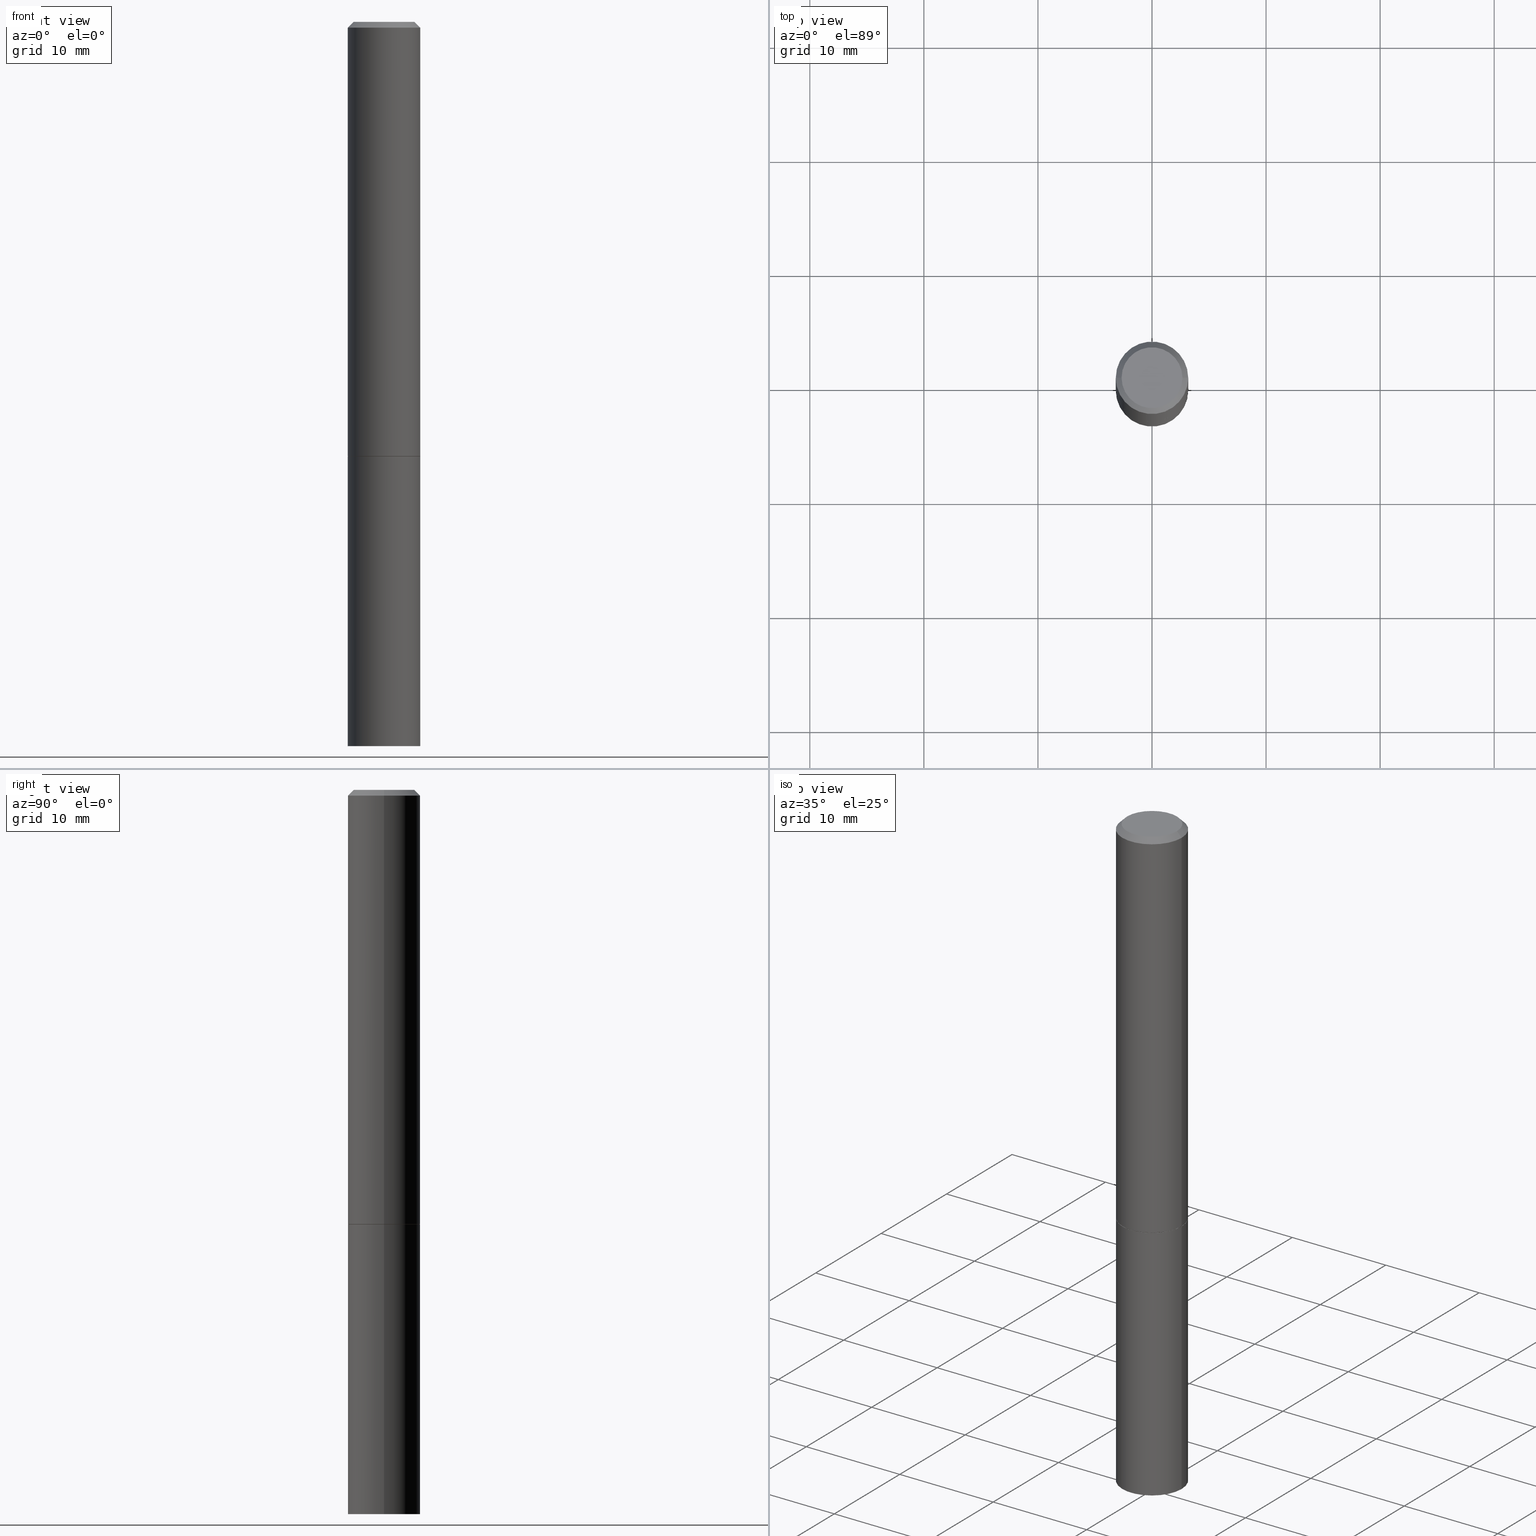
[diagram: canonical four-view strip — front | top / right | iso, engineering-drawing reading convention]
A machine part, canonical four-view strip (front | top / right | iso — engineering-drawing reading convention). The complete STEP part file that produces these views, byte-faithful:
ISO-10303-21;
HEADER;
FILE_DESCRIPTION (( 'STEP AP203' ),
    '1' );
FILE_NAME ('73079.STEP',
    '2024-02-29T07:47:25',
    ( '' ),
    ( '' ),
    'SwSTEP 2.0',
    'SolidWorks 2023',
    '' );
FILE_SCHEMA (( 'CONFIG_CONTROL_DESIGN' ));
ENDSEC;

DATA;
#1 = VECTOR ( 'NONE', #127, 39.37007874015748143 ) ;
#2 = EDGE_CURVE ( 'NONE', #347, #315, #365, .T. ) ;
#3 = AXIS2_PLACEMENT_3D ( 'NONE', #12, #95, #208 ) ;
#4 = SECURITY_CLASSIFICATION ( '', '', #124 ) ;
#5 = CARTESIAN_POINT ( 'NONE',  ( 0.1049999999999998018, -8.238720831321562839E-16, -8.537024980195379109E-18 ) ) ;
#6 = EDGE_CURVE ( 'NONE', #278, #240, #47, .T. ) ;
#7 = DIRECTION ( 'NONE',  ( 1.000000000000000000, -6.982962677686262766E-15, 0.000000000000000000 ) ) ;
#8 = DIRECTION ( 'NONE',  ( 1.000000000000000000, -6.982962677686270655E-15, 0.000000000000000000 ) ) ;
#9 = APPROVAL ( #15, 'UNSPECIFIED' ) ;
#10 = CARTESIAN_POINT ( 'NONE',  ( 4.890937612370282792E-31, -6.982962677686303935E-17, -0.02000000000000003858 ) ) ;
#11 = CIRCLE ( 'NONE', #34, 0.1250000000000000278 ) ;
#12 = CARTESIAN_POINT ( 'NONE',  ( 7.332110811570565452E-16, 0.1049999999999998018, -3.708740530686300305E-16 ) ) ;
#13 = PERSON_AND_ORGANIZATION ( #245, #106 ) ;
#14 = CARTESIAN_POINT ( 'NONE',  ( -0.1249999999999997918, 8.030407079339188573E-16, -0.02000000000000003858 ) ) ;
#15 = APPROVAL_STATUS ( 'not_yet_approved' ) ;
#16 = MANIFOLD_SOLID_BREP ( 'Body-Move/Copy2[1]', #157 ) ;
#17 = CARTESIAN_POINT ( 'NONE',  ( -0.1250000000000000278, -1.763601657151242227E-15, -1.499000000000000110 ) ) ;
#18 = DIRECTION ( 'NONE',  ( 1.000000000000000000, 0.000000000000000000, 0.000000000000000000 ) ) ;
#19 = CARTESIAN_POINT ( 'NONE',  ( -0.1250000000000000000, -6.094784257986165933E-15, -2.500000000000000000 ) ) ;
#20 = ORIENTED_EDGE ( 'NONE', *, *, #306, .T. ) ;
#21 = PERSON_AND_ORGANIZATION ( #245, #106 ) ;
#22 = AXIS2_PLACEMENT_3D ( 'NONE', #27, #254, #162 ) ;
#23 = ADVANCED_FACE ( 'NONE', ( #63 ), #33, .T. ) ;
#24 = DIRECTION ( 'NONE',  ( 1.000000000000000000, -6.982962677686266711E-15, 4.876176775795935793E-29 ) ) ;
#25 = PRODUCT_DEFINITION_FORMATION_WITH_SPECIFIED_SOURCE ( 'ANY', '', #138, .NOT_KNOWN. ) ;
#26 = APPLICATION_CONTEXT ( 'configuration controlled 3d designs of mechanical parts and assemblies' ) ;
#27 = CARTESIAN_POINT ( 'NONE',  ( 8.728703347108443769E-16, 0.1249999999999912709, -2.500000000000000444 ) ) ;
#28 = CARTESIAN_POINT ( 'NONE',  ( 0.1249999999999999029, -8.728703347107826486E-16, 6.095220969744914837E-30 ) ) ;
#29 = SHAPE_DEFINITION_REPRESENTATION ( #201, #161 ) ;
#30 = CONICAL_SURFACE ( 'NONE', #54, 0.1249999999999997918, 0.7853981633974473908 ) ;
#31 = CARTESIAN_POINT ( 'NONE',  ( 2.087702828670439639E-46, -2.980686340760894400E-32, -8.537024980200822558E-18 ) ) ;
#32 = CARTESIAN_POINT ( 'NONE',  ( -0.1250000000000000000, -6.094784257986165933E-15, -1.500000000000000222 ) ) ;
#33 = CYLINDRICAL_SURFACE ( 'NONE', #72, 0.1250000000000000000 ) ;
#34 = AXIS2_PLACEMENT_3D ( 'NONE', #222, #342, #53 ) ;
#35 = APPROVAL_PERSON_ORGANIZATION ( #243, #41, #98 ) ;
#36 = DIRECTION ( 'NONE',  ( 1.000000000000000000, -6.982962677686270655E-15, 0.000000000000000000 ) ) ;
#37 = DIRECTION ( 'NONE',  ( 1.000000000000000000, -6.982962677686270655E-15, 0.000000000000000000 ) ) ;
#38 = DESIGN_CONTEXT ( 'detailed design', #42, 'design' ) ;
#39 = CARTESIAN_POINT ( 'NONE',  ( 0.1239999999999999991, -6.103109380297816290E-15, -1.500000000000000222 ) ) ;
#40 = PERSON_AND_ORGANIZATION ( #245, #106 ) ;
#41 = APPROVAL ( #355, 'UNSPECIFIED' ) ;
#42 = APPLICATION_CONTEXT ( 'configuration controlled 3d designs of mechanical parts and assemblies' ) ;
#43 = EDGE_LOOP ( 'NONE', ( #225, #65, #20, #160 ) ) ;
#44 = VERTEX_POINT ( 'NONE', #66 ) ;
#45 = ORIENTED_EDGE ( 'NONE', *, *, #6, .F. ) ;
#46 = APPROVAL_STATUS ( 'not_yet_approved' ) ;
#47 = CIRCLE ( 'NONE', #257, 0.1249999999999997918 ) ;
#48 = ORIENTED_EDGE ( 'NONE', *, *, #187, .T. ) ;
#49 = VECTOR ( 'NONE', #134, 39.37007874015748143 ) ;
#50 = CONICAL_SURFACE ( 'NONE', #294, 0.1239999999999999991, 0.7853981633974227439 ) ;
#51 = CC_DESIGN_APPROVAL ( #9, ( #25 ) ) ;
#52 = ORIENTED_EDGE ( 'NONE', *, *, #140, .T. ) ;
#53 = DIRECTION ( 'NONE',  ( 1.000000000000000000, -6.982962677686269077E-15, 0.000000000000000000 ) ) ;
#54 = AXIS2_PLACEMENT_3D ( 'NONE', #354, #305, #149 ) ;
#55 = ORIENTED_EDGE ( 'NONE', *, *, #216, .T. ) ;
#56 = ORIENTED_EDGE ( 'NONE', *, *, #140, .F. ) ;
#57 = DIRECTION ( 'NONE',  ( -2.445468806185136597E-29, 3.491481338843145583E-15, 1.000000000000000000 ) ) ;
#58 = DIRECTION ( 'NONE',  ( -2.445468806185136877E-29, 3.491481338843145188E-15, 1.000000000000000000 ) ) ;
#59 =( LENGTH_UNIT ( ) NAMED_UNIT ( * ) SI_UNIT ( $, .METRE. ) );
#60 = AXIS2_PLACEMENT_3D ( 'NONE', #285, #77, #186 ) ;
#61 = ORIENTED_EDGE ( 'NONE', *, *, #197, .F. ) ;
#62 = ORIENTED_EDGE ( 'NONE', *, *, #266, .F. ) ;
#63 = FACE_OUTER_BOUND ( 'NONE', #43, .T. ) ;
#64 = EDGE_CURVE ( 'NONE', #298, #278, #229, .T. ) ;
#65 = ORIENTED_EDGE ( 'NONE', *, *, #328, .T. ) ;
#66 = CARTESIAN_POINT ( 'NONE',  ( 0.1250000000000000278, -6.106600861636660086E-15, -1.499000000000000110 ) ) ;
#67 = AXIS2_PLACEMENT_3D ( 'NONE', #181, #332, #37 ) ;
#68 = ORIENTED_EDGE ( 'NONE', *, *, #212, .T. ) ;
#69 = COORDINATED_UNIVERSAL_TIME_OFFSET ( 5, 0, .BEHIND. ) ;
#70 = CARTESIAN_POINT ( 'NONE',  ( -0.1249999999999997918, 8.030407079339188573E-16, -0.02000000000000003858 ) ) ;
#71 = MECHANICAL_CONTEXT ( 'NONE', #26, 'mechanical' ) ;
#72 = AXIS2_PLACEMENT_3D ( 'NONE', #262, #142, #323 ) ;
#73 = LINE ( 'NONE', #151, #1 ) ;
#74 = PERSON_AND_ORGANIZATION_ROLE ( 'design_supplier' ) ;
#75 = ORIENTED_EDGE ( 'NONE', *, *, #171, .T. ) ;
#76 = DIRECTION ( 'NONE',  ( -0.7071067811865294761, 7.493145998870289474E-15, 0.7071067811865655584 ) ) ;
#77 = DIRECTION ( 'NONE',  ( -2.445468806185136597E-29, 3.491481338843145583E-15, 1.000000000000000000 ) ) ;
#78 = ORIENTED_EDGE ( 'NONE', *, *, #171, .F. ) ;
#79 = CC_DESIGN_DATE_AND_TIME_ASSIGNMENT ( #156, #362, ( #133 ) ) ;
#80 = PERSON_AND_ORGANIZATION_ROLE ( 'creator' ) ;
#81 = VECTOR ( 'NONE', #319, 39.37007874015748143 ) ;
#82 = LINE ( 'NONE', #251, #221 ) ;
#83 = CC_DESIGN_PERSON_AND_ORGANIZATION_ASSIGNMENT ( #40, #270, ( #133 ) ) ;
#84 = CC_DESIGN_APPROVAL ( #41, ( #4 ) ) ;
#85 = ORIENTED_EDGE ( 'NONE', *, *, #93, .T. ) ;
#86 = EDGE_CURVE ( 'NONE', #364, #116, #135, .T. ) ;
#87 = DIRECTION ( 'NONE',  ( 1.000000000000000000, -6.982962677686270655E-15, 0.000000000000000000 ) ) ;
#88 = CC_DESIGN_SECURITY_CLASSIFICATION ( #4, ( #25 ) ) ;
#89 = DIRECTION ( 'NONE',  ( 1.000000000000000000, -6.982962677686262766E-15, 0.000000000000000000 ) ) ;
#90 = AXIS2_PLACEMENT_3D ( 'NONE', #321, #143, #7 ) ;
#91 = EDGE_LOOP ( 'NONE', ( #62, #255, #52, #230 ) ) ;
#92 = DIRECTION ( 'NONE',  ( 2.438088387897960049E-29, -3.491481338843145188E-15, -1.000000000000000000 ) ) ;
#93 = EDGE_CURVE ( 'NONE', #116, #364, #158, .T. ) ;
#94 = LINE ( 'NONE', #70, #226 ) ;
#95 = DIRECTION ( 'NONE',  ( 2.438088387897960049E-29, -3.491481338843145188E-15, -1.000000000000000000 ) ) ;
#96 = APPROVAL_ROLE ( '' ) ;
#97 = CARTESIAN_POINT ( 'NONE',  ( 3.668203209277704895E-29, -5.237222008264718177E-15, -1.500000000000000222 ) ) ;
#98 = APPROVAL_ROLE ( '' ) ;
#99 = ORIENTED_EDGE ( 'NONE', *, *, #2, .T. ) ;
#100 =( CONVERSION_BASED_UNIT ( 'INCH', #279 ) LENGTH_UNIT ( ) NAMED_UNIT ( #189 ) );
#101 = ORIENTED_EDGE ( 'NONE', *, *, #86, .F. ) ;
#102 = FACE_OUTER_BOUND ( 'NONE', #177, .T. ) ;
#103 = EDGE_CURVE ( 'NONE', #217, #191, #199, .T. ) ;
#104 = VERTEX_POINT ( 'NONE', #366 ) ;
#105 = ORIENTED_EDGE ( 'NONE', *, *, #216, .F. ) ;
#106 = ORGANIZATION ( 'UNSPECIFIED', 'UNSPECIFIED', '' ) ;
#107 = EDGE_LOOP ( 'NONE', ( #178, #68 ) ) ;
#108 = DIRECTION ( 'NONE',  ( -2.445468806185136597E-29, 3.491481338843145583E-15, 1.000000000000000000 ) ) ;
#109 = DIRECTION ( 'NONE',  ( -2.445468806185136597E-29, 3.491481338843145583E-15, 1.000000000000000000 ) ) ;
#110 = ORIENTED_EDGE ( 'NONE', *, *, #235, .T. ) ;
#111 = CIRCLE ( 'NONE', #168, 0.1249999999999997918 ) ;
#112 = CARTESIAN_POINT ( 'NONE',  ( -0.1249999999999999029, 8.881784197001245421E-16, -6.148668862818627323E-30 ) ) ;
#113 = LOCAL_TIME ( 2, 47, 25.00000000000000000, #69 ) ;
#114 = CARTESIAN_POINT ( 'NONE',  ( 0.000000000000000000, 0.000000000000000000, 0.000000000000000000 ) ) ;
#115 = FACE_OUTER_BOUND ( 'NONE', #91, .T. ) ;
#116 = VERTEX_POINT ( 'NONE', #227 ) ;
#117 = CARTESIAN_POINT ( 'NONE',  ( 2.087702828670439639E-46, -2.980686340760894400E-32, -8.537024980200822558E-18 ) ) ;
#118 = CARTESIAN_POINT ( 'NONE',  ( 3.668203209277704895E-29, -5.237222008264718177E-15, -1.500000000000000222 ) ) ;
#119 = DIRECTION ( 'NONE',  ( -2.445468806185136597E-29, 3.491481338843145583E-15, 1.000000000000000000 ) ) ;
#120 = CARTESIAN_POINT ( 'NONE',  ( 0.000000000000000000, 0.000000000000000000, 0.000000000000000000 ) ) ;
#121 = LOCAL_TIME ( 2, 47, 25.00000000000000000, #250 ) ;
#122 =( NAMED_UNIT ( * ) SI_UNIT ( $, .STERADIAN. ) SOLID_ANGLE_UNIT ( ) );
#123 = FACE_OUTER_BOUND ( 'NONE', #308, .T. ) ;
#124 = SECURITY_CLASSIFICATION_LEVEL ( 'unclassified' ) ;
#125 = CYLINDRICAL_SURFACE ( 'NONE', #280, 0.1250000000000000000 ) ;
#126 = CARTESIAN_POINT ( 'NONE',  ( 0.000000000000000000, 0.000000000000000000, 0.000000000000000000 ) ) ;
#127 = DIRECTION ( 'NONE',  ( 0.7071067811865469066, -7.319954787623254468E-15, -0.7071067811865482389 ) ) ;
#128 = PERSON_AND_ORGANIZATION ( #245, #106 ) ;
#129 = EDGE_LOOP ( 'NONE', ( #147, #110, #75, #287 ) ) ;
#130 = PERSON_AND_ORGANIZATION_ROLE ( 'design_owner' ) ;
#131 = ADVANCED_FACE ( 'NONE', ( #267 ), #247, .T. ) ;
#132 = EDGE_CURVE ( 'NONE', #315, #278, #94, .T. ) ;
#133 = PRODUCT_DEFINITION ( 'UNKNOWN', '', #25, #38 ) ;
#134 = DIRECTION ( 'NONE',  ( -2.445468806185136877E-29, 3.491481338843145188E-15, 1.000000000000000000 ) ) ;
#135 = CIRCLE ( 'NONE', #314, 0.1239999999999999991 ) ;
#136 = ORIENTED_EDGE ( 'NONE', *, *, #132, .T. ) ;
#137 = LINE ( 'NONE', #28, #357 ) ;
#138 = PRODUCT ( '73079', '73079', '', ( #71 ) ) ;
#139 = CARTESIAN_POINT ( 'NONE',  ( 3.668203209277704895E-29, -5.237222008264718177E-15, -1.500000000000000222 ) ) ;
#140 = EDGE_CURVE ( 'NONE', #116, #44, #145, .T. ) ;
#141 = AXIS2_PLACEMENT_3D ( 'NONE', #117, #291, #166 ) ;
#142 = DIRECTION ( 'NONE',  ( -2.445468806185136597E-29, 3.491481338843145583E-15, 1.000000000000000000 ) ) ;
#143 = DIRECTION ( 'NONE',  ( -2.445468806185136597E-29, 3.491481338843145583E-15, 1.000000000000000000 ) ) ;
#144 = ADVANCED_FACE ( 'NONE', ( #180 ), #206, .T. ) ;
#145 = LINE ( 'NONE', #39, #232 ) ;
#146 = PLANE ( 'NONE',  #341 ) ;
#147 = ORIENTED_EDGE ( 'NONE', *, *, #2, .F. ) ;
#148 = EDGE_LOOP ( 'NONE', ( #330, #261, #136, #302 ) ) ;
#149 = DIRECTION ( 'NONE',  ( -1.000000000000000000, 6.982962677686266711E-15, 0.000000000000000000 ) ) ;
#150 = CIRCLE ( 'NONE', #238, 0.1250000000000000278 ) ;
#151 = CARTESIAN_POINT ( 'NONE',  ( 0.1249999999999997918, -9.273918764983031658E-16, -0.02000000000000003858 ) ) ;
#152 =( NAMED_UNIT ( * ) PLANE_ANGLE_UNIT ( ) SI_UNIT ( $, .RADIAN. ) );
#153 = CALENDAR_DATE ( 2024, 29, 2 ) ;
#154 = DIRECTION ( 'NONE',  ( -1.000000000000000000, 6.982962677686265922E-15, -4.876176775795935793E-29 ) ) ;
#155 = EDGE_CURVE ( 'NONE', #104, #191, #349, .T. ) ;
#156 = DATE_AND_TIME ( #307, #121 ) ;
#157 = CLOSED_SHELL ( 'NONE', ( #301, #316, #242, #23 ) ) ;
#158 = CIRCLE ( 'NONE', #348, 0.1239999999999999991 ) ;
#159 = PERSON_AND_ORGANIZATION ( #245, #106 ) ;
#160 = ORIENTED_EDGE ( 'NONE', *, *, #212, .F. ) ;
#161 = ADVANCED_BREP_SHAPE_REPRESENTATION ( '73079', ( #16, #263, #182 ), #344 ) ;
#162 = DIRECTION ( 'NONE',  ( -1.000000000000000000, 6.982962677686265922E-15, -4.876176775795935793E-29 ) ) ;
#163 = VERTEX_POINT ( 'NONE', #300 ) ;
#164 = CONICAL_SURFACE ( 'NONE', #252, 0.1249999999999997918, 0.7853981633974473908 ) ;
#165 = PLANE ( 'NONE',  #22 ) ;
#166 = DIRECTION ( 'NONE',  ( 1.000000000000000000, -6.982962677686265922E-15, 4.876206205277402997E-29 ) ) ;
#167 = EDGE_LOOP ( 'NONE', ( #340, #318, #283, #45 ) ) ;
#168 = AXIS2_PLACEMENT_3D ( 'NONE', #207, #223, #198 ) ;
#169 = ORIENTED_EDGE ( 'NONE', *, *, #306, .F. ) ;
#170 = CC_DESIGN_PERSON_AND_ORGANIZATION_ASSIGNMENT ( #13, #188, ( #4 ) ) ;
#171 = EDGE_CURVE ( 'NONE', #240, #278, #111, .T. ) ;
#172 = CARTESIAN_POINT ( 'NONE',  ( 3.668203209277704895E-29, -5.237222008264718177E-15, -1.500000000000000222 ) ) ;
#173 = LOCAL_TIME ( 2, 47, 25.00000000000000000, #361 ) ;
#174 = FACE_OUTER_BOUND ( 'NONE', #107, .T. ) ;
#175 = APPROVAL ( #46, 'UNSPECIFIED' ) ;
#176 = CARTESIAN_POINT ( 'NONE',  ( 3.665757740471519853E-29, -5.233730526925875958E-15, -1.499000000000000110 ) ) ;
#177 = EDGE_LOOP ( 'NONE', ( #105, #234 ) ) ;
#178 = ORIENTED_EDGE ( 'NONE', *, *, #155, .T. ) ;
#179 = CALENDAR_DATE ( 2024, 29, 2 ) ;
#180 = FACE_OUTER_BOUND ( 'NONE', #312, .T. ) ;
#181 = CARTESIAN_POINT ( 'NONE',  ( 6.113672015462842613E-29, -8.728703347107864943E-15, -2.500000000000000000 ) ) ;
#182 = AXIS2_PLACEMENT_3D ( 'NONE', #126, #352, #18 ) ;
#183 = CARTESIAN_POINT ( 'NONE',  ( 8.728703347108198236E-16, 0.1249999999999947542, -1.500000000000000666 ) ) ;
#184 = COORDINATED_UNIVERSAL_TIME_OFFSET ( 5, 0, .BEHIND. ) ;
#185 = DATE_AND_TIME ( #310, #311 ) ;
#186 = DIRECTION ( 'NONE',  ( 1.000000000000000000, -6.982962677686270655E-15, 0.000000000000000000 ) ) ;
#187 = EDGE_CURVE ( 'NONE', #315, #347, #265, .T. ) ;
#188 = PERSON_AND_ORGANIZATION_ROLE ( 'classification_officer' ) ;
#189 = DIMENSIONAL_EXPONENTS ( 1.000000000000000000, 0.000000000000000000, 0.000000000000000000, 0.000000000000000000, 0.000000000000000000, 0.000000000000000000, 0.000000000000000000 ) ;
#190 = AXIS2_PLACEMENT_3D ( 'NONE', #114, #293, #259 ) ;
#191 = VERTEX_POINT ( 'NONE', #32 ) ;
#192 = DATE_AND_TIME ( #153, #248 ) ;
#193 = ORIENTED_EDGE ( 'NONE', *, *, #345, .F. ) ;
#194 = ADVANCED_FACE ( 'NONE', ( #200 ), #264, .T. ) ;
#195 = CIRCLE ( 'NONE', #60, 0.1250000000000000000 ) ;
#196 = ORIENTED_EDGE ( 'NONE', *, *, #155, .F. ) ;
#197 = EDGE_CURVE ( 'NONE', #44, #240, #137, .T. ) ;
#198 = DIRECTION ( 'NONE',  ( 1.000000000000000000, -6.982962677686266711E-15, 0.000000000000000000 ) ) ;
#199 = LINE ( 'NONE', #296, #49 ) ;
#200 = FACE_OUTER_BOUND ( 'NONE', #167, .T. ) ;
#201 = PRODUCT_DEFINITION_SHAPE ( 'NONE', 'NONE',  #133 ) ;
#202 = DIRECTION ( 'NONE',  ( -2.445468806185136597E-29, 3.491481338843145583E-15, 1.000000000000000000 ) ) ;
#203 = FACE_OUTER_BOUND ( 'NONE', #339, .T. ) ;
#204 = AXIS2_PLACEMENT_3D ( 'NONE', #31, #202, #260 ) ;
#205 = AXIS2_PLACEMENT_3D ( 'NONE', #239, #353, #8 ) ;
#206 = CONICAL_SURFACE ( 'NONE', #205, 0.1239999999999999991, 0.7853981633974227439 ) ;
#207 = CARTESIAN_POINT ( 'NONE',  ( 4.890937612370282792E-31, -6.982962677686303935E-17, -0.02000000000000003858 ) ) ;
#208 = DIRECTION ( 'NONE',  ( -1.000000000000000000, 6.982962677686265922E-15, -4.876176775795935793E-29 ) ) ;
#209 = APPROVAL_ROLE ( '' ) ;
#210 = DIRECTION ( 'NONE',  ( -2.438088387897960049E-29, 3.491481338843145188E-15, 1.000000000000000000 ) ) ;
#211 = DATE_AND_TIME ( #179, #113 ) ;
#212 = EDGE_CURVE ( 'NONE', #191, #104, #213, .T. ) ;
#213 = CIRCLE ( 'NONE', #90, 0.1250000000000000000 ) ;
#214 = APPROVAL_PERSON_ORGANIZATION ( #128, #9, #209 ) ;
#215 = COORDINATED_UNIVERSAL_TIME_OFFSET ( 5, 0, .BEHIND. ) ;
#216 = EDGE_CURVE ( 'NONE', #163, #217, #320, .T. ) ;
#217 = VERTEX_POINT ( 'NONE', #19 ) ;
#218 = DATE_AND_TIME ( #276, #173 ) ;
#219 = ORIENTED_EDGE ( 'NONE', *, *, #93, .F. ) ;
#220 = CLOSED_SHELL ( 'NONE', ( #144, #131, #256, #228, #194, #363, #297, #286 ) ) ;
#221 = VECTOR ( 'NONE', #281, 39.37007874015748143 ) ;
#222 = CARTESIAN_POINT ( 'NONE',  ( 3.665757740471519853E-29, -5.233730526925875958E-15, -1.499000000000000110 ) ) ;
#223 = DIRECTION ( 'NONE',  ( -2.445468806185136597E-29, 3.491481338843145583E-15, 1.000000000000000000 ) ) ;
#224 = ORIENTED_EDGE ( 'NONE', *, *, #103, .T. ) ;
#225 = ORIENTED_EDGE ( 'NONE', *, *, #103, .F. ) ;
#226 = VECTOR ( 'NONE', #337, 39.37007874015748143 ) ;
#227 = CARTESIAN_POINT ( 'NONE',  ( 0.1239999999999999991, -6.103109380297816290E-15, -1.500000000000000222 ) ) ;
#228 = ADVANCED_FACE ( 'NONE', ( #324 ), #164, .T. ) ;
#229 = LINE ( 'NONE', #112, #81 ) ;
#230 = ORIENTED_EDGE ( 'NONE', *, *, #335, .F. ) ;
#231 = CARTESIAN_POINT ( 'NONE',  ( 4.890937612370282792E-31, -6.982962677686303935E-17, -0.02000000000000003858 ) ) ;
#232 = VECTOR ( 'NONE', #326, 39.37007874015748143 ) ;
#233 = DIRECTION ( 'NONE',  ( -2.445468806185136597E-29, 3.491481338843145583E-15, 1.000000000000000000 ) ) ;
#234 = ORIENTED_EDGE ( 'NONE', *, *, #328, .F. ) ;
#235 = EDGE_CURVE ( 'NONE', #347, #240, #73, .T. ) ;
#236 = DIRECTION ( 'NONE',  ( -2.445468806185136597E-29, 3.491481338843145583E-15, 1.000000000000000000 ) ) ;
#237 = DIRECTION ( 'NONE',  ( 1.000000000000000000, -6.982962677686269077E-15, 0.000000000000000000 ) ) ;
#238 = AXIS2_PLACEMENT_3D ( 'NONE', #176, #119, #237 ) ;
#239 = CARTESIAN_POINT ( 'NONE',  ( 3.668203209277704895E-29, -5.237222008264718177E-15, -1.500000000000000222 ) ) ;
#240 = VERTEX_POINT ( 'NONE', #275 ) ;
#241 = PLANE ( 'NONE',  #303 ) ;
#242 = ADVANCED_FACE ( 'NONE', ( #174 ), #146, .F. ) ;
#243 = PERSON_AND_ORGANIZATION ( #245, #106 ) ;
#244 = FACE_OUTER_BOUND ( 'NONE', #290, .T. ) ;
#245 = PERSON ( 'UNSPECIFIED', 'UNSPECIFIED', 'UNSPECIFIED', ('UNSPECIFIED'), ('UNSPECIFIED'), ('UNSPECIFIED') ) ;
#246 = PERSON_AND_ORGANIZATION ( #245, #106 ) ;
#247 = CYLINDRICAL_SURFACE ( 'NONE', #271, 0.1249999999999999029 ) ;
#248 = LOCAL_TIME ( 2, 47, 25.00000000000000000, #184 ) ;
#249 = FACE_OUTER_BOUND ( 'NONE', #129, .T. ) ;
#250 = COORDINATED_UNIVERSAL_TIME_OFFSET ( 5, 0, .BEHIND. ) ;
#251 = CARTESIAN_POINT ( 'NONE',  ( 0.1250000000000000000, -8.728703347107833388E-16, 6.095220969744919741E-30 ) ) ;
#252 = AXIS2_PLACEMENT_3D ( 'NONE', #10, #351, #336 ) ;
#253 = CARTESIAN_POINT ( 'NONE',  ( -0.1049999999999998018, 7.681258945454876027E-16, -8.537024980206071872E-18 ) ) ;
#254 = DIRECTION ( 'NONE',  ( 2.438088387897960049E-29, -3.491481338843145188E-15, -1.000000000000000000 ) ) ;
#255 = ORIENTED_EDGE ( 'NONE', *, *, #86, .T. ) ;
#256 = ADVANCED_FACE ( 'NONE', ( #249 ), #30, .T. ) ;
#257 = AXIS2_PLACEMENT_3D ( 'NONE', #231, #108, #322 ) ;
#258 = VECTOR ( 'NONE', #76, 39.37007874015748143 ) ;
#259 = DIRECTION ( 'NONE',  ( 1.000000000000000000, -6.982962677686266711E-15, 4.876176775795935793E-29 ) ) ;
#260 = DIRECTION ( 'NONE',  ( 1.000000000000000000, -6.982962677686265922E-15, 4.876206205277402997E-29 ) ) ;
#261 = ORIENTED_EDGE ( 'NONE', *, *, #187, .F. ) ;
#262 = CARTESIAN_POINT ( 'NONE',  ( 0.000000000000000000, 0.000000000000000000, 0.000000000000000000 ) ) ;
#263 = MANIFOLD_SOLID_BREP ( 'Body-Move/Copy2[2]', #220 ) ;
#264 = CYLINDRICAL_SURFACE ( 'NONE', #190, 0.1249999999999999029 ) ;
#265 = CIRCLE ( 'NONE', #141, 0.1049999999999998018 ) ;
#266 = EDGE_CURVE ( 'NONE', #364, #298, #273, .T. ) ;
#267 = FACE_OUTER_BOUND ( 'NONE', #313, .T. ) ;
#268 = DIRECTION ( 'NONE',  ( -2.445468806185136597E-29, 3.491481338843145583E-15, 1.000000000000000000 ) ) ;
#269 = ORIENTED_EDGE ( 'NONE', *, *, #64, .T. ) ;
#270 = PERSON_AND_ORGANIZATION_ROLE ( 'creator' ) ;
#271 = AXIS2_PLACEMENT_3D ( 'NONE', #120, #334, #358 ) ;
#272 = CC_DESIGN_PERSON_AND_ORGANIZATION_ASSIGNMENT ( #246, #80, ( #25 ) ) ;
#273 = LINE ( 'NONE', #277, #258 ) ;
#274 = APPROVAL_DATE_TIME ( #185, #175 ) ;
#275 = CARTESIAN_POINT ( 'NONE',  ( 0.1249999999999997918, -9.273918764983031658E-16, -0.02000000000000003858 ) ) ;
#276 = CALENDAR_DATE ( 2024, 29, 2 ) ;
#277 = CARTESIAN_POINT ( 'NONE',  ( -0.1239999999999999991, -4.356149015922194741E-15, -1.500000000000000222 ) ) ;
#278 = VERTEX_POINT ( 'NONE', #14 ) ;
#279 = LENGTH_MEASURE_WITH_UNIT ( LENGTH_MEASURE( 0.02539999999999999897 ), #59 );
#280 = AXIS2_PLACEMENT_3D ( 'NONE', #356, #268, #24 ) ;
#281 = DIRECTION ( 'NONE',  ( -2.445468806185136877E-29, 3.491481338843145188E-15, 1.000000000000000000 ) ) ;
#282 = APPLICATION_PROTOCOL_DEFINITION ( 'international standard', 'config_control_design', 1994, #42 ) ;
#283 = ORIENTED_EDGE ( 'NONE', *, *, #197, .T. ) ;
#284 = AXIS2_PLACEMENT_3D ( 'NONE', #118, #236, #89 ) ;
#285 = CARTESIAN_POINT ( 'NONE',  ( 6.113672015462842613E-29, -8.728703347107864943E-15, -2.500000000000000000 ) ) ;
#286 = ADVANCED_FACE ( 'NONE', ( #244 ), #360, .F. ) ;
#287 = ORIENTED_EDGE ( 'NONE', *, *, #132, .F. ) ;
#288 = APPROVAL_DATE_TIME ( #192, #41 ) ;
#289 = CC_DESIGN_APPROVAL ( #175, ( #133 ) ) ;
#290 = EDGE_LOOP ( 'NONE', ( #48, #99 ) ) ;
#291 = DIRECTION ( 'NONE',  ( -2.445468806185136597E-29, 3.491481338843145583E-15, 1.000000000000000000 ) ) ;
#292 = ORIENTED_EDGE ( 'NONE', *, *, #345, .T. ) ;
#293 = DIRECTION ( 'NONE',  ( -2.445468806185136597E-29, 3.491481338843145583E-15, 1.000000000000000000 ) ) ;
#294 = AXIS2_PLACEMENT_3D ( 'NONE', #139, #233, #36 ) ;
#295 = UNCERTAINTY_MEASURE_WITH_UNIT (LENGTH_MEASURE( 1.000000000000000082E-05 ), #100, 'distance_accuracy_value', 'NONE');
#296 = CARTESIAN_POINT ( 'NONE',  ( -0.1250000000000000000, 8.881784197001252323E-16, -6.148668862818632227E-30 ) ) ;
#297 = ADVANCED_FACE ( 'NONE', ( #123 ), #241, .F. ) ;
#298 = VERTEX_POINT ( 'NONE', #17 ) ;
#299 = DATE_TIME_ROLE ( 'classification_date' ) ;
#300 = CARTESIAN_POINT ( 'NONE',  ( 0.1250000000000000000, -9.601573681818648281E-15, -2.500000000000000000 ) ) ;
#301 = ADVANCED_FACE ( 'NONE', ( #203 ), #125, .T. ) ;
#302 = ORIENTED_EDGE ( 'NONE', *, *, #6, .T. ) ;
#303 = AXIS2_PLACEMENT_3D ( 'NONE', #97, #210, #304 ) ;
#304 = DIRECTION ( 'NONE',  ( 1.000000000000000000, -6.982962677686265922E-15, 4.876176775795935793E-29 ) ) ;
#305 = DIRECTION ( 'NONE',  ( 2.445468806185136597E-29, -3.491481338843145583E-15, -1.000000000000000000 ) ) ;
#306 = EDGE_CURVE ( 'NONE', #163, #104, #82, .T. ) ;
#307 = CALENDAR_DATE ( 2024, 29, 2 ) ;
#308 = EDGE_LOOP ( 'NONE', ( #219, #101 ) ) ;
#309 = PRODUCT_RELATED_PRODUCT_CATEGORY ( 'detail', '', ( #138 ) ) ;
#310 = CALENDAR_DATE ( 2024, 29, 2 ) ;
#311 = LOCAL_TIME ( 2, 47, 25.00000000000000000, #215 ) ;
#312 = EDGE_LOOP ( 'NONE', ( #85, #327, #193, #56 ) ) ;
#313 = EDGE_LOOP ( 'NONE', ( #292, #269, #78, #61 ) ) ;
#314 = AXIS2_PLACEMENT_3D ( 'NONE', #317, #57, #346 ) ;
#315 = VERTEX_POINT ( 'NONE', #253 ) ;
#316 = ADVANCED_FACE ( 'NONE', ( #102 ), #165, .T. ) ;
#317 = CARTESIAN_POINT ( 'NONE',  ( 3.668203209277704895E-29, -5.237222008264718177E-15, -1.500000000000000222 ) ) ;
#318 = ORIENTED_EDGE ( 'NONE', *, *, #335, .T. ) ;
#319 = DIRECTION ( 'NONE',  ( -2.445468806185136877E-29, 3.491481338843145188E-15, 1.000000000000000000 ) ) ;
#320 = CIRCLE ( 'NONE', #67, 0.1250000000000000000 ) ;
#321 = CARTESIAN_POINT ( 'NONE',  ( 3.668203209277704895E-29, -5.237222008264718177E-15, -1.500000000000000222 ) ) ;
#322 = DIRECTION ( 'NONE',  ( 1.000000000000000000, -6.982962677686266711E-15, 0.000000000000000000 ) ) ;
#323 = DIRECTION ( 'NONE',  ( 1.000000000000000000, -6.982962677686266711E-15, 4.876176775795935793E-29 ) ) ;
#324 = FACE_OUTER_BOUND ( 'NONE', #148, .T. ) ;
#325 = APPROVAL_PERSON_ORGANIZATION ( #21, #175, #96 ) ;
#326 = DIRECTION ( 'NONE',  ( 0.7071067811865294761, -2.468850131082068128E-15, 0.7071067811865655584 ) ) ;
#327 = ORIENTED_EDGE ( 'NONE', *, *, #266, .T. ) ;
#328 = EDGE_CURVE ( 'NONE', #217, #163, #195, .T. ) ;
#329 = PERSON_AND_ORGANIZATION ( #245, #106 ) ;
#330 = ORIENTED_EDGE ( 'NONE', *, *, #235, .F. ) ;
#331 = APPROVAL_DATE_TIME ( #218, #9 ) ;
#332 = DIRECTION ( 'NONE',  ( -2.445468806185136597E-29, 3.491481338843145583E-15, 1.000000000000000000 ) ) ;
#333 = APPLICATION_PROTOCOL_DEFINITION ( 'international standard', 'config_control_design', 1994, #26 ) ;
#334 = DIRECTION ( 'NONE',  ( -2.445468806185136597E-29, 3.491481338843145583E-15, 1.000000000000000000 ) ) ;
#335 = EDGE_CURVE ( 'NONE', #298, #44, #11, .T. ) ;
#336 = DIRECTION ( 'NONE',  ( -1.000000000000000000, 6.982962677686266711E-15, 0.000000000000000000 ) ) ;
#337 = DIRECTION ( 'NONE',  ( -0.7071067811865469066, 2.468850131082249961E-15, -0.7071067811865482389 ) ) ;
#338 = CC_DESIGN_PERSON_AND_ORGANIZATION_ASSIGNMENT ( #329, #74, ( #25 ) ) ;
#339 = EDGE_LOOP ( 'NONE', ( #55, #224, #196, #169 ) ) ;
#340 = ORIENTED_EDGE ( 'NONE', *, *, #64, .F. ) ;
#341 = AXIS2_PLACEMENT_3D ( 'NONE', #183, #92, #154 ) ;
#342 = DIRECTION ( 'NONE',  ( -2.445468806185136597E-29, 3.491481338843145583E-15, 1.000000000000000000 ) ) ;
#343 = CC_DESIGN_PERSON_AND_ORGANIZATION_ASSIGNMENT ( #159, #130, ( #138 ) ) ;
#344 =( GEOMETRIC_REPRESENTATION_CONTEXT ( 3 ) GLOBAL_UNCERTAINTY_ASSIGNED_CONTEXT ( ( #295 ) ) GLOBAL_UNIT_ASSIGNED_CONTEXT ( ( #100, #152, #122 ) ) REPRESENTATION_CONTEXT ( 'NONE', 'WORKASPACE' ) );
#345 = EDGE_CURVE ( 'NONE', #44, #298, #150, .T. ) ;
#346 = DIRECTION ( 'NONE',  ( 1.000000000000000000, -6.982962677686270655E-15, 0.000000000000000000 ) ) ;
#347 = VERTEX_POINT ( 'NONE', #5 ) ;
#348 = AXIS2_PLACEMENT_3D ( 'NONE', #172, #109, #87 ) ;
#349 = CIRCLE ( 'NONE', #284, 0.1250000000000000000 ) ;
#350 = CARTESIAN_POINT ( 'NONE',  ( -0.1239999999999999991, -4.350850561573972339E-15, -1.500000000000000222 ) ) ;
#351 = DIRECTION ( 'NONE',  ( 2.445468806185136597E-29, -3.491481338843145583E-15, -1.000000000000000000 ) ) ;
#352 = DIRECTION ( 'NONE',  ( 0.000000000000000000, 0.000000000000000000, 1.000000000000000000 ) ) ;
#353 = DIRECTION ( 'NONE',  ( -2.445468806185136597E-29, 3.491481338843145583E-15, 1.000000000000000000 ) ) ;
#354 = CARTESIAN_POINT ( 'NONE',  ( 4.890937612370282792E-31, -6.982962677686303935E-17, -0.02000000000000003858 ) ) ;
#355 = APPROVAL_STATUS ( 'not_yet_approved' ) ;
#356 = CARTESIAN_POINT ( 'NONE',  ( 0.000000000000000000, 0.000000000000000000, 0.000000000000000000 ) ) ;
#357 = VECTOR ( 'NONE', #58, 39.37007874015748143 ) ;
#358 = DIRECTION ( 'NONE',  ( 1.000000000000000000, -6.982962677686266711E-15, 4.876176775795935793E-29 ) ) ;
#359 = CC_DESIGN_DATE_AND_TIME_ASSIGNMENT ( #211, #299, ( #4 ) ) ;
#360 = PLANE ( 'NONE',  #3 ) ;
#361 = COORDINATED_UNIVERSAL_TIME_OFFSET ( 5, 0, .BEHIND. ) ;
#362 = DATE_TIME_ROLE ( 'creation_date' ) ;
#363 = ADVANCED_FACE ( 'NONE', ( #115 ), #50, .T. ) ;
#364 = VERTEX_POINT ( 'NONE', #350 ) ;
#365 = CIRCLE ( 'NONE', #204, 0.1049999999999998018 ) ;
#366 = CARTESIAN_POINT ( 'NONE',  ( 0.1250000000000000000, -6.110092342975501516E-15, -1.500000000000000222 ) ) ;
ENDSEC;
END-ISO-10303-21;
